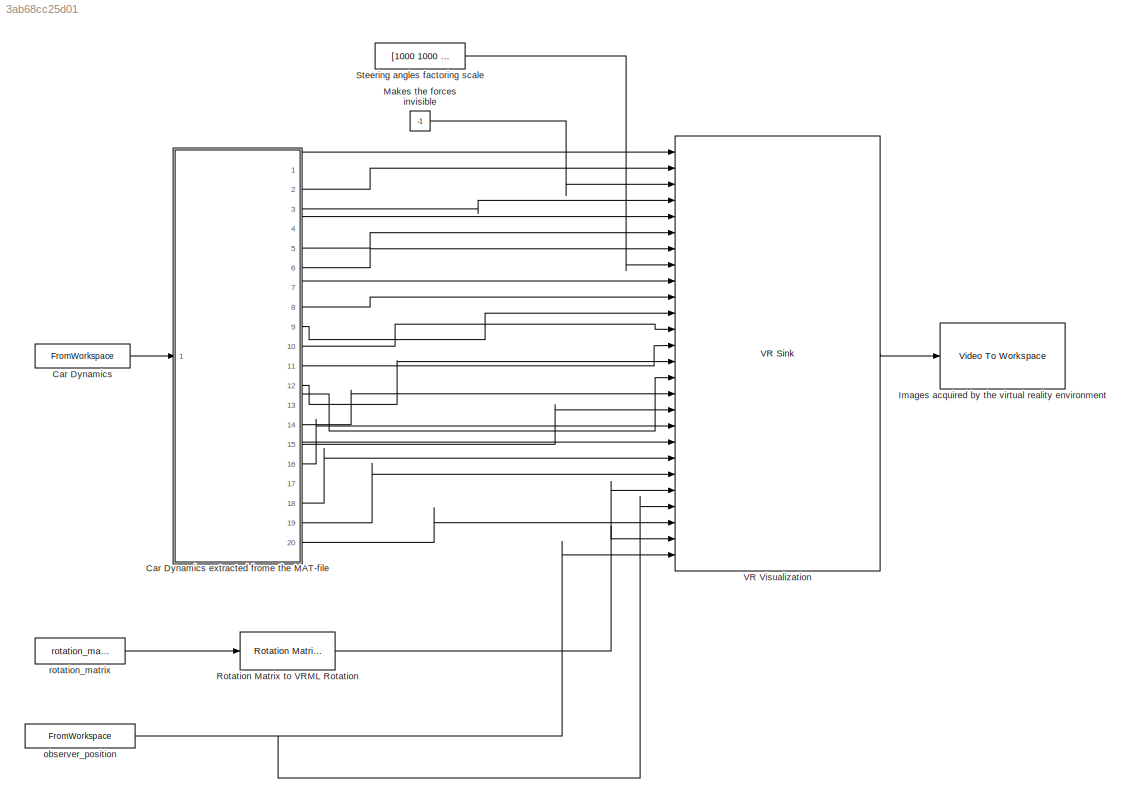
MODEL slx_3ab68cc25d01
KIND model
CONFIG AbsTol = auto
CONFIG FixedStep = 0.04
CONFIG MaxStep = auto
CONFIG MinStep = auto
CONFIG PostLoadFcn = if ~exist('visionlib','file') sl3ddemo_callbacks('DelayedError', gcs, 'Missing Library', 'This example requires Computer Vision System Toolbox.'); end; load octavia_testlap
CONFIG RelTol = 1e-3
CONFIG SampleTimeConstraint = Unconstrained
CONFIG Solver = ode3
CONFIG SolverMode = Auto
CONFIG SolverName = ode3
CONFIG StartTime = 0.0
CONFIG StopTime = sampleTime
BLOCK [FromWorkspace] Car Dynamics
  OutputAfterFinalValue = Holding final value
  SampleTime = 0.04
  VariableName = test_lap
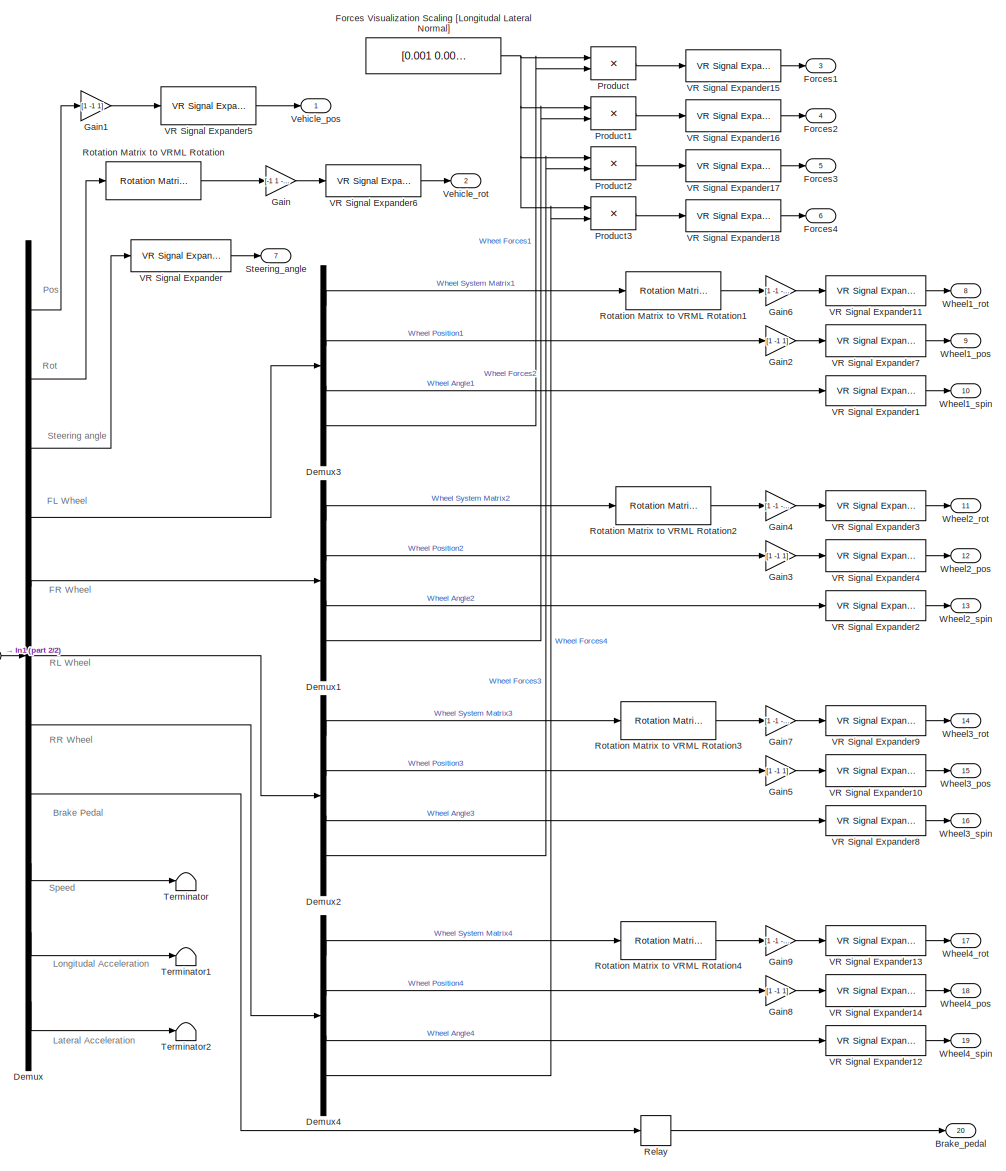
[diagram: Car Dynamics extracted frome the MAT-file - part 1/2, most of the canvas]
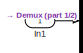
[diagram: Car Dynamics extracted frome the MAT-file - part 2/2, middle left region]
BLOCK [SubSystem] Car Dynamics extracted frome the MAT-file
  Ports = [1, 20]
  RequestExecContextInheritance = off
  Variant = off
BLOCK [Outport] Car Dynamics extracted frome the MAT-file/Brake_pedal
  IconDisplay = Port number
  Port = 20
BLOCK [Demux] Car Dynamics extracted frome the MAT-file/Demux
  Outputs = [3,9,1,16,16,16,16,1,1,1,1]
  Ports = [1, 11]
BLOCK [Demux] Car Dynamics extracted frome the MAT-file/Demux1
  Outputs = [9,3,1,3]
  Ports = [1, 4]
BLOCK [Demux] Car Dynamics extracted frome the MAT-file/Demux2
  Outputs = [9,3,1,3]
  Ports = [1, 4]
BLOCK [Demux] Car Dynamics extracted frome the MAT-file/Demux3
  Outputs = [9,3,1,3]
  Ports = [1, 4]
BLOCK [Demux] Car Dynamics extracted frome the MAT-file/Demux4
  Outputs = [9,3,1,3]
  Ports = [1, 4]
BLOCK [Constant] Car Dynamics extracted frome the MAT-file/Forces Visualization Scaling [Longitudal Lateral Normal]
  Value = [0.001 0.001 0.00025]
BLOCK [Outport] Car Dynamics extracted frome the MAT-file/Forces1
  IconDisplay = Port number
  Port = 3
BLOCK [Outport] Car Dynamics extracted frome the MAT-file/Forces2
  IconDisplay = Port number
  Port = 4
BLOCK [Outport] Car Dynamics extracted frome the MAT-file/Forces3
  IconDisplay = Port number
  Port = 5
BLOCK [Outport] Car Dynamics extracted frome the MAT-file/Forces4
  IconDisplay = Port number
  Port = 6
BLOCK [Gain] Car Dynamics extracted frome the MAT-file/Gain
  Gain = [-1 1 -1 1]
BLOCK [Gain] Car Dynamics extracted frome the MAT-file/Gain1
  Gain = [1 -1 1]
BLOCK [Gain] Car Dynamics extracted frome the MAT-file/Gain2
  Gain = [1 -1 1]
BLOCK [Gain] Car Dynamics extracted frome the MAT-file/Gain3
  Gain = [1 -1 1]
BLOCK [Gain] Car Dynamics extracted frome the MAT-file/Gain4
  Gain = [1 -1 -1 1]
BLOCK [Gain] Car Dynamics extracted frome the MAT-file/Gain5
  Gain = [1 -1 1]
BLOCK [Gain] Car Dynamics extracted frome the MAT-file/Gain6
  Gain = [1 -1 -1 1]
BLOCK [Gain] Car Dynamics extracted frome the MAT-file/Gain7
  Gain = [1 -1 -1 1]
BLOCK [Gain] Car Dynamics extracted frome the MAT-file/Gain8
  Gain = [1 -1 1]
BLOCK [Gain] Car Dynamics extracted frome the MAT-file/Gain9
  Gain = [1 -1 -1 1]
BLOCK [Inport] Car Dynamics extracted frome the MAT-file/In1
  IconDisplay = Port number
BLOCK [Product] Car Dynamics extracted frome the MAT-file/Product
  InputSameDT = off
  Ports = [2, 1]
  RndMeth = Floor
BLOCK [Product] Car Dynamics extracted frome the MAT-file/Product1
  InputSameDT = off
  Ports = [2, 1]
  RndMeth = Floor
BLOCK [Product] Car Dynamics extracted frome the MAT-file/Product2
  InputSameDT = off
  Ports = [2, 1]
  RndMeth = Floor
BLOCK [Product] Car Dynamics extracted frome the MAT-file/Product3
  InputSameDT = off
  Ports = [2, 1]
  RndMeth = Floor
BLOCK [Relay] Car Dynamics extracted frome the MAT-file/Relay
BLOCK [Reference] Car Dynamics extracted frome the MAT-file/Rotation Matrix to VRML Rotation  REF=vrlib/Utilities/Rotation Matrix
to VRML Rotation
  Ports = [1, 1]
  SourceBlock = vrlib/Utilities/Rotation Matrix\nto VRML Rotation
  SourceType = Rotation Matrix to VRML Rotation
BLOCK [Reference] Car Dynamics extracted frome the MAT-file/Rotation Matrix to VRML Rotation1  REF=vrlib/Utilities/Rotation Matrix
to VRML Rotation
  Ports = [1, 1]
  SourceBlock = vrlib/Utilities/Rotation Matrix\nto VRML Rotation
  SourceType = Rotation Matrix to VRML Rotation
BLOCK [Reference] Car Dynamics extracted frome the MAT-file/Rotation Matrix to VRML Rotation2  REF=vrlib/Utilities/Rotation Matrix
to VRML Rotation
  Ports = [1, 1]
  SourceBlock = vrlib/Utilities/Rotation Matrix\nto VRML Rotation
  SourceType = Rotation Matrix to VRML Rotation
BLOCK [Reference] Car Dynamics extracted frome the MAT-file/Rotation Matrix to VRML Rotation3  REF=vrlib/Utilities/Rotation Matrix
to VRML Rotation
  Ports = [1, 1]
  SourceBlock = vrlib/Utilities/Rotation Matrix\nto VRML Rotation
  SourceType = Rotation Matrix to VRML Rotation
BLOCK [Reference] Car Dynamics extracted frome the MAT-file/Rotation Matrix to VRML Rotation4  REF=vrlib/Utilities/Rotation Matrix
to VRML Rotation
  Ports = [1, 1]
  SourceBlock = vrlib/Utilities/Rotation Matrix\nto VRML Rotation
  SourceType = Rotation Matrix to VRML Rotation
BLOCK [Outport] Car Dynamics extracted frome the MAT-file/Steering_angle
  IconDisplay = Port number
  Port = 7
BLOCK [Terminator] Car Dynamics extracted frome the MAT-file/Terminator
BLOCK [Terminator] Car Dynamics extracted frome the MAT-file/Terminator1
BLOCK [Terminator] Car Dynamics extracted frome the MAT-file/Terminator2
BLOCK [Reference] Car Dynamics extracted frome the MAT-file/VR Signal Expander  REF=vrlib/VR Signal Expander
  Ports = [1, 1]
  SourceBlock = vrlib/VR Signal Expander
  SourceType = VR Signal Expander
BLOCK [Reference] Car Dynamics extracted frome the MAT-file/VR Signal Expander1  REF=vrlib/VR Signal Expander
  Ports = [1, 1]
  SourceBlock = vrlib/VR Signal Expander
  SourceType = VR Signal Expander
BLOCK [Reference] Car Dynamics extracted frome the MAT-file/VR Signal Expander10  REF=vrlib/VR Signal Expander
  Ports = [1, 1]
  SourceBlock = vrlib/VR Signal Expander
  SourceType = VR Signal Expander
BLOCK [Reference] Car Dynamics extracted frome the MAT-file/VR Signal Expander11  REF=vrlib/VR Signal Expander
  Ports = [1, 1]
  SourceBlock = vrlib/VR Signal Expander
  SourceType = VR Signal Expander
BLOCK [Reference] Car Dynamics extracted frome the MAT-file/VR Signal Expander12  REF=vrlib/VR Signal Expander
  Ports = [1, 1]
  SourceBlock = vrlib/VR Signal Expander
  SourceType = VR Signal Expander
BLOCK [Reference] Car Dynamics extracted frome the MAT-file/VR Signal Expander13  REF=vrlib/VR Signal Expander
  Ports = [1, 1]
  SourceBlock = vrlib/VR Signal Expander
  SourceType = VR Signal Expander
BLOCK [Reference] Car Dynamics extracted frome the MAT-file/VR Signal Expander14  REF=vrlib/VR Signal Expander
  Ports = [1, 1]
  SourceBlock = vrlib/VR Signal Expander
  SourceType = VR Signal Expander
BLOCK [Reference] Car Dynamics extracted frome the MAT-file/VR Signal Expander15  REF=vrlib/VR Signal Expander
  Ports = [1, 1]
  SourceBlock = vrlib/VR Signal Expander
  SourceType = VR Signal Expander
BLOCK [Reference] Car Dynamics extracted frome the MAT-file/VR Signal Expander16  REF=vrlib/VR Signal Expander
  Ports = [1, 1]
  SourceBlock = vrlib/VR Signal Expander
  SourceType = VR Signal Expander
BLOCK [Reference] Car Dynamics extracted frome the MAT-file/VR Signal Expander17  REF=vrlib/VR Signal Expander
  Ports = [1, 1]
  SourceBlock = vrlib/VR Signal Expander
  SourceType = VR Signal Expander
BLOCK [Reference] Car Dynamics extracted frome the MAT-file/VR Signal Expander18  REF=vrlib/VR Signal Expander
  Ports = [1, 1]
  SourceBlock = vrlib/VR Signal Expander
  SourceType = VR Signal Expander
BLOCK [Reference] Car Dynamics extracted frome the MAT-file/VR Signal Expander2  REF=vrlib/VR Signal Expander
  Ports = [1, 1]
  SourceBlock = vrlib/VR Signal Expander
  SourceType = VR Signal Expander
BLOCK [Reference] Car Dynamics extracted frome the MAT-file/VR Signal Expander3  REF=vrlib/VR Signal Expander
  Ports = [1, 1]
  SourceBlock = vrlib/VR Signal Expander
  SourceType = VR Signal Expander
BLOCK [Reference] Car Dynamics extracted frome the MAT-file/VR Signal Expander4  REF=vrlib/VR Signal Expander
  Ports = [1, 1]
  SourceBlock = vrlib/VR Signal Expander
  SourceType = VR Signal Expander
BLOCK [Reference] Car Dynamics extracted frome the MAT-file/VR Signal Expander5  REF=vrlib/VR Signal Expander
  Ports = [1, 1]
  SourceBlock = vrlib/VR Signal Expander
  SourceType = VR Signal Expander
BLOCK [Reference] Car Dynamics extracted frome the MAT-file/VR Signal Expander6  REF=vrlib/VR Signal Expander
  Ports = [1, 1]
  SourceBlock = vrlib/VR Signal Expander
  SourceType = VR Signal Expander
BLOCK [Reference] Car Dynamics extracted frome the MAT-file/VR Signal Expander7  REF=vrlib/VR Signal Expander
  Ports = [1, 1]
  SourceBlock = vrlib/VR Signal Expander
  SourceType = VR Signal Expander
BLOCK [Reference] Car Dynamics extracted frome the MAT-file/VR Signal Expander8  REF=vrlib/VR Signal Expander
  Ports = [1, 1]
  SourceBlock = vrlib/VR Signal Expander
  SourceType = VR Signal Expander
BLOCK [Reference] Car Dynamics extracted frome the MAT-file/VR Signal Expander9  REF=vrlib/VR Signal Expander
  Ports = [1, 1]
  SourceBlock = vrlib/VR Signal Expander
  SourceType = VR Signal Expander
BLOCK [Outport] Car Dynamics extracted frome the MAT-file/Vehicle_pos
  IconDisplay = Port number
BLOCK [Outport] Car Dynamics extracted frome the MAT-file/Vehicle_rot
  IconDisplay = Port number
  Port = 2
BLOCK [Outport] Car Dynamics extracted frome the MAT-file/Wheel1_pos
  IconDisplay = Port number
  Port = 9
BLOCK [Outport] Car Dynamics extracted frome the MAT-file/Wheel1_rot
  IconDisplay = Port number
  Port = 8
BLOCK [Outport] Car Dynamics extracted frome the MAT-file/Wheel1_spin
  IconDisplay = Port number
  Port = 10
BLOCK [Outport] Car Dynamics extracted frome the MAT-file/Wheel2_pos
  IconDisplay = Port number
  Port = 12
BLOCK [Outport] Car Dynamics extracted frome the MAT-file/Wheel2_rot
  IconDisplay = Port number
  Port = 11
BLOCK [Outport] Car Dynamics extracted frome the MAT-file/Wheel2_spin
  IconDisplay = Port number
  Port = 13
BLOCK [Outport] Car Dynamics extracted frome the MAT-file/Wheel3_pos
  IconDisplay = Port number
  Port = 15
BLOCK [Outport] Car Dynamics extracted frome the MAT-file/Wheel3_rot
  IconDisplay = Port number
  Port = 14
BLOCK [Outport] Car Dynamics extracted frome the MAT-file/Wheel3_spin
  IconDisplay = Port number
  Port = 16
BLOCK [Outport] Car Dynamics extracted frome the MAT-file/Wheel4_pos
  IconDisplay = Port number
  Port = 18
BLOCK [Outport] Car Dynamics extracted frome the MAT-file/Wheel4_rot
  IconDisplay = Port number
  Port = 17
BLOCK [Outport] Car Dynamics extracted frome the MAT-file/Wheel4_spin
  IconDisplay = Port number
  Port = 19
BLOCK [Reference] Images acquired by the virtual reality environment  REF=visionsinks/Video To Workspace
  Ports = [1]
  SourceBlock = visionsinks/Video To Workspace
  SourceType = Video To Workspace
BLOCK [Constant] Makes the forces invisible
  Value = -1
BLOCK [Reference] Rotation Matrix to VRML Rotation  REF=vrlib/Utilities/Rotation Matrix
to VRML Rotation
  Ports = [1, 1]
  SourceBlock = vrlib/Utilities/Rotation Matrix\nto VRML Rotation
  SourceType = Rotation Matrix to VRML Rotation
BLOCK [Constant] Steering angles factoring scale
  Value = [1000 1000 1000]
  VectorParams1D = off
BLOCK [Reference] VR Visualization  REF=vrlib/VR Sink
  InstantiateOnLoad = on
  Ports = [26, 1]
  SourceBlock = vrlib/VR Sink
  SourceType = Virtual Reality Sink
BLOCK [FromWorkspace] observer_position
  SampleTime = 0
  VariableName = observer_position
  ZeroCross = on
BLOCK [Constant] rotation_matrix
  Value = rotation_matrix
ANNOTATION Car Dynamics extracted frome the MAT-file: Brake Pedal
ANNOTATION Car Dynamics extracted frome the MAT-file: FL Wheel
ANNOTATION Car Dynamics extracted frome the MAT-file: FR Wheel
ANNOTATION Car Dynamics extracted frome the MAT-file: Lateral Acceleration
ANNOTATION Car Dynamics extracted frome the MAT-file: Longitudal Acceleration
ANNOTATION Car Dynamics extracted frome the MAT-file: Pos
ANNOTATION Car Dynamics extracted frome the MAT-file: RL Wheel
ANNOTATION Car Dynamics extracted frome the MAT-file: RR Wheel
ANNOTATION Car Dynamics extracted frome the MAT-file: Rot
ANNOTATION Car Dynamics extracted frome the MAT-file: Speed
ANNOTATION Car Dynamics extracted frome the MAT-file: Steering angle
LINE Car Dynamics extracted frome the MAT-file/Demux1:1 -> Car Dynamics extracted frome the MAT-file/Rotation Matrix to VRML Rotation2:1
LINE Car Dynamics extracted frome the MAT-file/Demux1:2 -> Car Dynamics extracted frome the MAT-file/Gain3:1
LINE Car Dynamics extracted frome the MAT-file/Demux1:3 -> Car Dynamics extracted frome the MAT-file/VR Signal Expander2:1
LINE Car Dynamics extracted frome the MAT-file/Demux1:4 -> Car Dynamics extracted frome the MAT-file/Product1:2
LINE Car Dynamics extracted frome the MAT-file/Demux2:1 -> Car Dynamics extracted frome the MAT-file/Rotation Matrix to VRML Rotation3:1
LINE Car Dynamics extracted frome the MAT-file/Demux2:2 -> Car Dynamics extracted frome the MAT-file/Gain5:1
LINE Car Dynamics extracted frome the MAT-file/Demux2:3 -> Car Dynamics extracted frome the MAT-file/VR Signal Expander8:1
LINE Car Dynamics extracted frome the MAT-file/Demux2:4 -> Car Dynamics extracted frome the MAT-file/Product2:2
LINE Car Dynamics extracted frome the MAT-file/Demux3:1 -> Car Dynamics extracted frome the MAT-file/Rotation Matrix to VRML Rotation1:1
LINE Car Dynamics extracted frome the MAT-file/Demux3:2 -> Car Dynamics extracted frome the MAT-file/Gain2:1
LINE Car Dynamics extracted frome the MAT-file/Demux3:3 -> Car Dynamics extracted frome the MAT-file/VR Signal Expander1:1
LINE Car Dynamics extracted frome the MAT-file/Demux3:4 -> Car Dynamics extracted frome the MAT-file/Product:2
LINE Car Dynamics extracted frome the MAT-file/Demux4:1 -> Car Dynamics extracted frome the MAT-file/Rotation Matrix to VRML Rotation4:1
LINE Car Dynamics extracted frome the MAT-file/Demux4:2 -> Car Dynamics extracted frome the MAT-file/Gain8:1
LINE Car Dynamics extracted frome the MAT-file/Demux4:3 -> Car Dynamics extracted frome the MAT-file/VR Signal Expander12:1
LINE Car Dynamics extracted frome the MAT-file/Demux4:4 -> Car Dynamics extracted frome the MAT-file/Product3:2
LINE Car Dynamics extracted frome the MAT-file/Demux:1 -> Car Dynamics extracted frome the MAT-file/Gain1:1
LINE Car Dynamics extracted frome the MAT-file/Demux:10 -> Car Dynamics extracted frome the MAT-file/Terminator1:1
LINE Car Dynamics extracted frome the MAT-file/Demux:11 -> Car Dynamics extracted frome the MAT-file/Terminator2:1
LINE Car Dynamics extracted frome the MAT-file/Demux:2 -> Car Dynamics extracted frome the MAT-file/Rotation Matrix to VRML Rotation:1
LINE Car Dynamics extracted frome the MAT-file/Demux:3 -> Car Dynamics extracted frome the MAT-file/VR Signal Expander:1
LINE Car Dynamics extracted frome the MAT-file/Demux:4 -> Car Dynamics extracted frome the MAT-file/Demux3:1
LINE Car Dynamics extracted frome the MAT-file/Demux:5 -> Car Dynamics extracted frome the MAT-file/Demux1:1
LINE Car Dynamics extracted frome the MAT-file/Demux:6 -> Car Dynamics extracted frome the MAT-file/Demux2:1
LINE Car Dynamics extracted frome the MAT-file/Demux:7 -> Car Dynamics extracted frome the MAT-file/Demux4:1
LINE Car Dynamics extracted frome the MAT-file/Demux:8 -> Car Dynamics extracted frome the MAT-file/Relay:1
LINE Car Dynamics extracted frome the MAT-file/Demux:9 -> Car Dynamics extracted frome the MAT-file/Terminator:1
NET Car Dynamics extracted frome the MAT-file/Forces Visualization Scaling [Longitudal Lateral Normal]:1 -> Car Dynamics extracted frome the MAT-file/Product1:1, Car Dynamics extracted frome the MAT-file/Product2:1, Car Dynamics extracted frome the MAT-file/Product3:1, Car Dynamics extracted frome the MAT-file/Product:1
LINE Car Dynamics extracted frome the MAT-file/Gain1:1 -> Car Dynamics extracted frome the MAT-file/VR Signal Expander5:1
LINE Car Dynamics extracted frome the MAT-file/Gain2:1 -> Car Dynamics extracted frome the MAT-file/VR Signal Expander7:1
LINE Car Dynamics extracted frome the MAT-file/Gain3:1 -> Car Dynamics extracted frome the MAT-file/VR Signal Expander4:1
LINE Car Dynamics extracted frome the MAT-file/Gain4:1 -> Car Dynamics extracted frome the MAT-file/VR Signal Expander3:1
LINE Car Dynamics extracted frome the MAT-file/Gain5:1 -> Car Dynamics extracted frome the MAT-file/VR Signal Expander10:1
LINE Car Dynamics extracted frome the MAT-file/Gain6:1 -> Car Dynamics extracted frome the MAT-file/VR Signal Expander11:1
LINE Car Dynamics extracted frome the MAT-file/Gain7:1 -> Car Dynamics extracted frome the MAT-file/VR Signal Expander9:1
LINE Car Dynamics extracted frome the MAT-file/Gain8:1 -> Car Dynamics extracted frome the MAT-file/VR Signal Expander14:1
LINE Car Dynamics extracted frome the MAT-file/Gain9:1 -> Car Dynamics extracted frome the MAT-file/VR Signal Expander13:1
LINE Car Dynamics extracted frome the MAT-file/Gain:1 -> Car Dynamics extracted frome the MAT-file/VR Signal Expander6:1
LINE Car Dynamics extracted frome the MAT-file/In1:1 -> Car Dynamics extracted frome the MAT-file/Demux:1
LINE Car Dynamics extracted frome the MAT-file/Product1:1 -> Car Dynamics extracted frome the MAT-file/VR Signal Expander16:1
LINE Car Dynamics extracted frome the MAT-file/Product2:1 -> Car Dynamics extracted frome the MAT-file/VR Signal Expander17:1
LINE Car Dynamics extracted frome the MAT-file/Product3:1 -> Car Dynamics extracted frome the MAT-file/VR Signal Expander18:1
LINE Car Dynamics extracted frome the MAT-file/Product:1 -> Car Dynamics extracted frome the MAT-file/VR Signal Expander15:1
LINE Car Dynamics extracted frome the MAT-file/Relay:1 -> Car Dynamics extracted frome the MAT-file/Brake_pedal:1
LINE Car Dynamics extracted frome the MAT-file/Rotation Matrix to VRML Rotation1:1 -> Car Dynamics extracted frome the MAT-file/Gain6:1
LINE Car Dynamics extracted frome the MAT-file/Rotation Matrix to VRML Rotation2:1 -> Car Dynamics extracted frome the MAT-file/Gain4:1
LINE Car Dynamics extracted frome the MAT-file/Rotation Matrix to VRML Rotation3:1 -> Car Dynamics extracted frome the MAT-file/Gain7:1
LINE Car Dynamics extracted frome the MAT-file/Rotation Matrix to VRML Rotation4:1 -> Car Dynamics extracted frome the MAT-file/Gain9:1
LINE Car Dynamics extracted frome the MAT-file/Rotation Matrix to VRML Rotation:1 -> Car Dynamics extracted frome the MAT-file/Gain:1
LINE Car Dynamics extracted frome the MAT-file/VR Signal Expander10:1 -> Car Dynamics extracted frome the MAT-file/Wheel3_pos:1
LINE Car Dynamics extracted frome the MAT-file/VR Signal Expander11:1 -> Car Dynamics extracted frome the MAT-file/Wheel1_rot:1
LINE Car Dynamics extracted frome the MAT-file/VR Signal Expander12:1 -> Car Dynamics extracted frome the MAT-file/Wheel4_spin:1
LINE Car Dynamics extracted frome the MAT-file/VR Signal Expander13:1 -> Car Dynamics extracted frome the MAT-file/Wheel4_rot:1
LINE Car Dynamics extracted frome the MAT-file/VR Signal Expander14:1 -> Car Dynamics extracted frome the MAT-file/Wheel4_pos:1
LINE Car Dynamics extracted frome the MAT-file/VR Signal Expander15:1 -> Car Dynamics extracted frome the MAT-file/Forces1:1
LINE Car Dynamics extracted frome the MAT-file/VR Signal Expander16:1 -> Car Dynamics extracted frome the MAT-file/Forces2:1
LINE Car Dynamics extracted frome the MAT-file/VR Signal Expander17:1 -> Car Dynamics extracted frome the MAT-file/Forces3:1
LINE Car Dynamics extracted frome the MAT-file/VR Signal Expander18:1 -> Car Dynamics extracted frome the MAT-file/Forces4:1
LINE Car Dynamics extracted frome the MAT-file/VR Signal Expander1:1 -> Car Dynamics extracted frome the MAT-file/Wheel1_spin:1
LINE Car Dynamics extracted frome the MAT-file/VR Signal Expander2:1 -> Car Dynamics extracted frome the MAT-file/Wheel2_spin:1
LINE Car Dynamics extracted frome the MAT-file/VR Signal Expander3:1 -> Car Dynamics extracted frome the MAT-file/Wheel2_rot:1
LINE Car Dynamics extracted frome the MAT-file/VR Signal Expander4:1 -> Car Dynamics extracted frome the MAT-file/Wheel2_pos:1
LINE Car Dynamics extracted frome the MAT-file/VR Signal Expander5:1 -> Car Dynamics extracted frome the MAT-file/Vehicle_pos:1
LINE Car Dynamics extracted frome the MAT-file/VR Signal Expander6:1 -> Car Dynamics extracted frome the MAT-file/Vehicle_rot:1
LINE Car Dynamics extracted frome the MAT-file/VR Signal Expander7:1 -> Car Dynamics extracted frome the MAT-file/Wheel1_pos:1
LINE Car Dynamics extracted frome the MAT-file/VR Signal Expander8:1 -> Car Dynamics extracted frome the MAT-file/Wheel3_spin:1
LINE Car Dynamics extracted frome the MAT-file/VR Signal Expander9:1 -> Car Dynamics extracted frome the MAT-file/Wheel3_rot:1
LINE Car Dynamics extracted frome the MAT-file/VR Signal Expander:1 -> Car Dynamics extracted frome the MAT-file/Steering_angle:1
LINE Car Dynamics extracted frome the MAT-file:1 -> VR Visualization:1
LINE Car Dynamics extracted frome the MAT-file:10 -> VR Visualization:12
LINE Car Dynamics extracted frome the MAT-file:11 -> VR Visualization:13
LINE Car Dynamics extracted frome the MAT-file:12 -> VR Visualization:14
LINE Car Dynamics extracted frome the MAT-file:13 -> VR Visualization:15
LINE Car Dynamics extracted frome the MAT-file:14 -> VR Visualization:16
LINE Car Dynamics extracted frome the MAT-file:15 -> VR Visualization:17
LINE Car Dynamics extracted frome the MAT-file:16 -> VR Visualization:18
LINE Car Dynamics extracted frome the MAT-file:17 -> VR Visualization:19
LINE Car Dynamics extracted frome the MAT-file:18 -> VR Visualization:20
LINE Car Dynamics extracted frome the MAT-file:19 -> VR Visualization:21
LINE Car Dynamics extracted frome the MAT-file:2 -> VR Visualization:2
LINE Car Dynamics extracted frome the MAT-file:20 -> VR Visualization:24
LINE Car Dynamics extracted frome the MAT-file:3 -> VR Visualization:4
LINE Car Dynamics extracted frome the MAT-file:4 -> VR Visualization:5
LINE Car Dynamics extracted frome the MAT-file:5 -> VR Visualization:6
LINE Car Dynamics extracted frome the MAT-file:6 -> VR Visualization:7
LINE Car Dynamics extracted frome the MAT-file:7 -> VR Visualization:9
LINE Car Dynamics extracted frome the MAT-file:8 -> VR Visualization:10
LINE Car Dynamics extracted frome the MAT-file:9 -> VR Visualization:11
LINE Car Dynamics:1 -> Car Dynamics extracted frome the MAT-file:1
LINE Makes the forces invisible:1 -> VR Visualization:3
NET Rotation Matrix to VRML Rotation:1 -> VR Visualization:22, VR Visualization:25
LINE Steering angles factoring scale:1 -> VR Visualization:8
LINE VR Visualization:1 -> Images acquired by the virtual reality environment:1
NET observer_position:1 -> VR Visualization:23, VR Visualization:26
LINE rotation_matrix:1 -> Rotation Matrix to VRML Rotation:1
note: NET lines group one-source signal fan-out (src -> all destinations, sorted); 1:1 wires keep LINE
